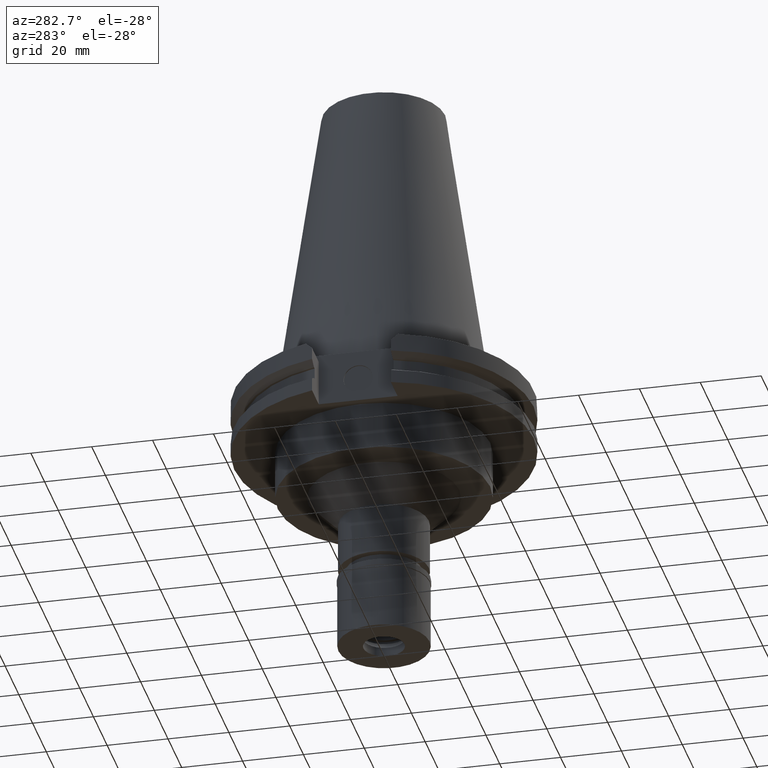
[diagram: clean part render]
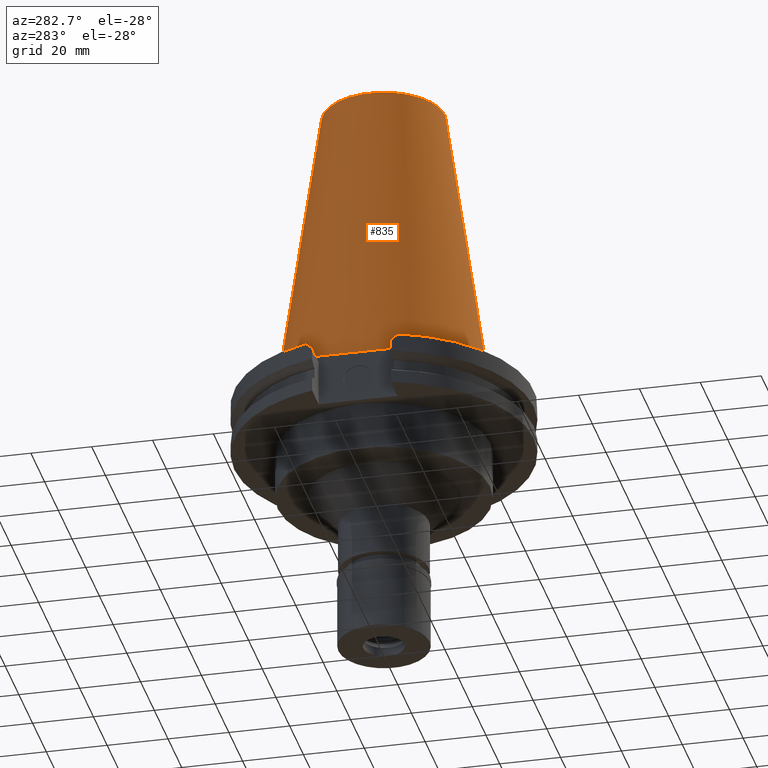
[diagram: same view with one face highlighted and labeled with its STEP entity id]
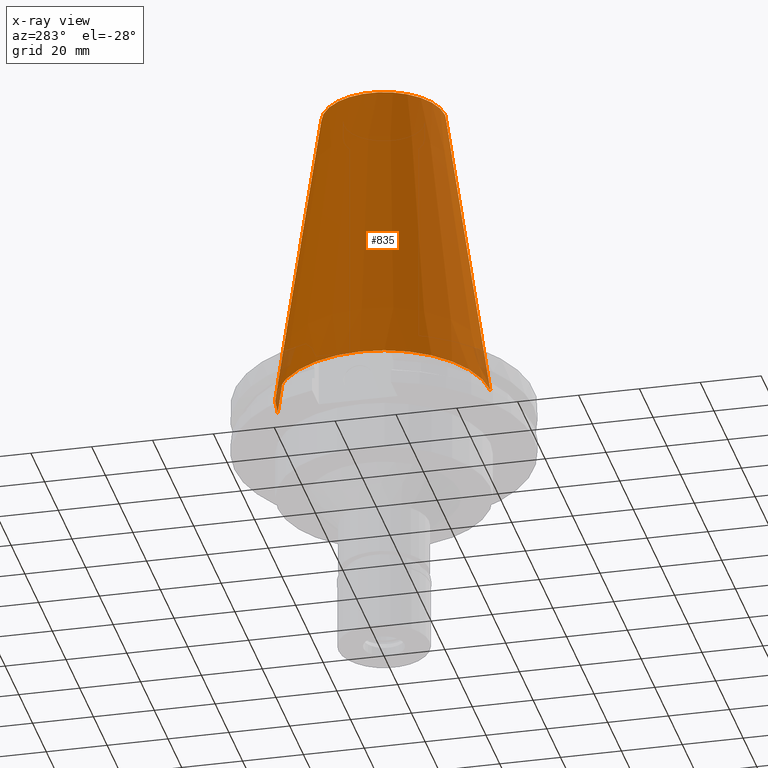
[diagram: x-ray of the same camera — body ghosted, the highlighted face saturated]
A machine part, auxiliary view. The second image highlights one B-rep face of the part: STEP entity #835.
The next image is the same camera in x-ray: the body ghosted, the highlighted face saturated — about 1% of this face is hidden behind the body in this view.
In plain terms, the highlighted conical surface has half-angle 8.297 deg.
Its self-contained STEP definition (entity closure, byte-faithful):
#60 = AXIS2_PLACEMENT_3D ( 'NONE', #404, #151, #943 ) ;
#146 = DIRECTION ( 'NONE',  ( 0.0000000000000000000, 0.0000000000000000000, -1.000000000000000000 ) ) ;
#151 = DIRECTION ( 'NONE',  ( 0.0000000000000000000, 0.0000000000000000000, -1.000000000000000000 ) ) ;
#230 = EDGE_CURVE ( 'NONE', #2324, #926, #2228, .T. ) ;
#404 = CARTESIAN_POINT ( 'NONE',  ( 0.0000000000000000000, 1.846767373113999857E-14, 50.79999999999999716 ) ) ;
#429 = CARTESIAN_POINT ( 'NONE',  ( 0.0000000000000000000, 1.846767373113999857E-14, 101.5999999999999943 ) ) ;
#618 = AXIS2_PLACEMENT_3D ( 'NONE', #429, #146, #1201 ) ;
#649 = DIRECTION ( 'NONE',  ( 0.0000000000000000000, 0.1443069799456937474, -0.9895329683941577192 ) ) ;
#685 = EDGE_LOOP ( 'NONE', ( #3321, #1037, #1520, #2412 ) ) ;
#732 = AXIS2_PLACEMENT_3D ( 'NONE', #1890, #1644, #2899 ) ;
#835 = ADVANCED_FACE ( 'NONE', ( #2694 ), #3228, .T. ) ;
#926 = VERTEX_POINT ( 'NONE', #974 ) ;
#943 = DIRECTION ( 'NONE',  ( 0.0000000000000000000, -1.000000000000000000, 0.0000000000000000000 ) ) ;
#974 = CARTESIAN_POINT ( 'NONE',  ( 0.0000000000000000000, 34.92499999999999716, 4.121147867409000121E-13 ) ) ;
#1037 = ORIENTED_EDGE ( 'NONE', *, *, #3210, .F. ) ;
#1201 = DIRECTION ( 'NONE',  ( 0.0000000000000000000, -1.000000000000000000, 0.0000000000000000000 ) ) ;
#1203 = EDGE_CURVE ( 'NONE', #2157, #2324, #3035, .T. ) ;
#1430 = VERTEX_POINT ( 'NONE', #2809 ) ;
#1520 = ORIENTED_EDGE ( 'NONE', *, *, #1203, .T. ) ;
#1644 = DIRECTION ( 'NONE',  ( 0.0000000000000000000, 0.0000000000000000000, -1.000000000000000000 ) ) ;
#1840 = CARTESIAN_POINT ( 'NONE',  ( 0.0000000000000000000, -20.10832422387000307, 101.5999999999999943 ) ) ;
#1873 = DIRECTION ( 'NONE',  ( 0.0000000000000000000, -0.1443069799456937474, -0.9895329683941577192 ) ) ;
#1890 = CARTESIAN_POINT ( 'NONE',  ( 0.0000000000000000000, 1.846767373113999857E-14, 7.389644451905000534E-13 ) ) ;
#1932 = CARTESIAN_POINT ( 'NONE',  ( 0.0000000000000000000, 20.10832422388000040, 101.5999999999999943 ) ) ;
#2157 = VERTEX_POINT ( 'NONE', #2838 ) ;
#2166 = CIRCLE ( 'NONE', #732, 34.92499999999999716 ) ;
#2228 = LINE ( 'NONE', #2983, #2524 ) ;
#2324 = VERTEX_POINT ( 'NONE', #1932 ) ;
#2412 = ORIENTED_EDGE ( 'NONE', *, *, #230, .T. ) ;
#2524 = VECTOR ( 'NONE', #649, 1000.000000000000114 ) ;
#2694 = FACE_OUTER_BOUND ( 'NONE', #685, .T. ) ;
#2809 = CARTESIAN_POINT ( 'NONE',  ( 0.0000000000000000000, -34.92499999999999716, 4.121147867409000121E-13 ) ) ;
#2838 = CARTESIAN_POINT ( 'NONE',  ( 0.0000000000000000000, -20.10832422388000040, 101.5999999999999943 ) ) ;
#2899 = DIRECTION ( 'NONE',  ( 0.0000000000000000000, -1.000000000000000000, 0.0000000000000000000 ) ) ;
#2983 = CARTESIAN_POINT ( 'NONE',  ( 0.0000000000000000000, 20.10832422387000307, 101.5999999999999943 ) ) ;
#3024 = LINE ( 'NONE', #1840, #3130 ) ;
#3035 = CIRCLE ( 'NONE', #618, 20.10832422388000040 ) ;
#3130 = VECTOR ( 'NONE', #1873, 1000.000000000000114 ) ;
#3210 = EDGE_CURVE ( 'NONE', #2157, #1430, #3024, .T. ) ;
#3228 = CONICAL_SURFACE ( 'NONE', #60, 27.51666211194000056, 0.1448125860318199565 ) ;
#3321 = ORIENTED_EDGE ( 'NONE', *, *, #3323, .F. ) ;
#3323 = EDGE_CURVE ( 'NONE', #1430, #926, #2166, .T. ) ;